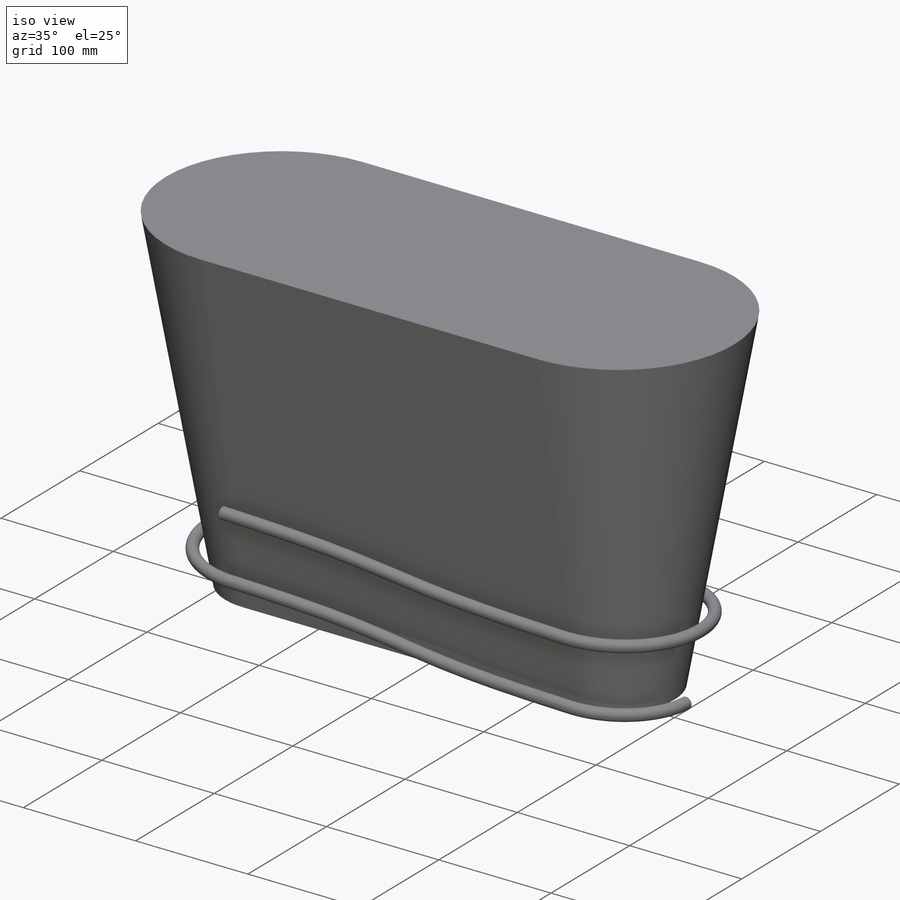
[diagram: iso view]
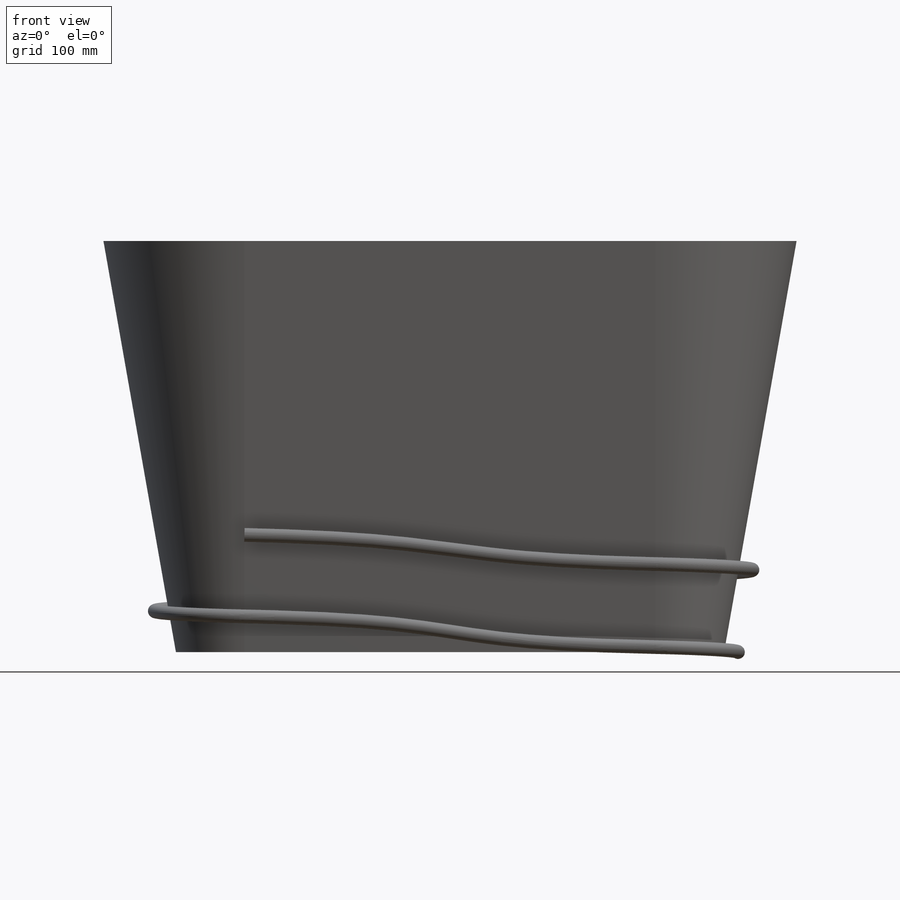
[diagram: front view]
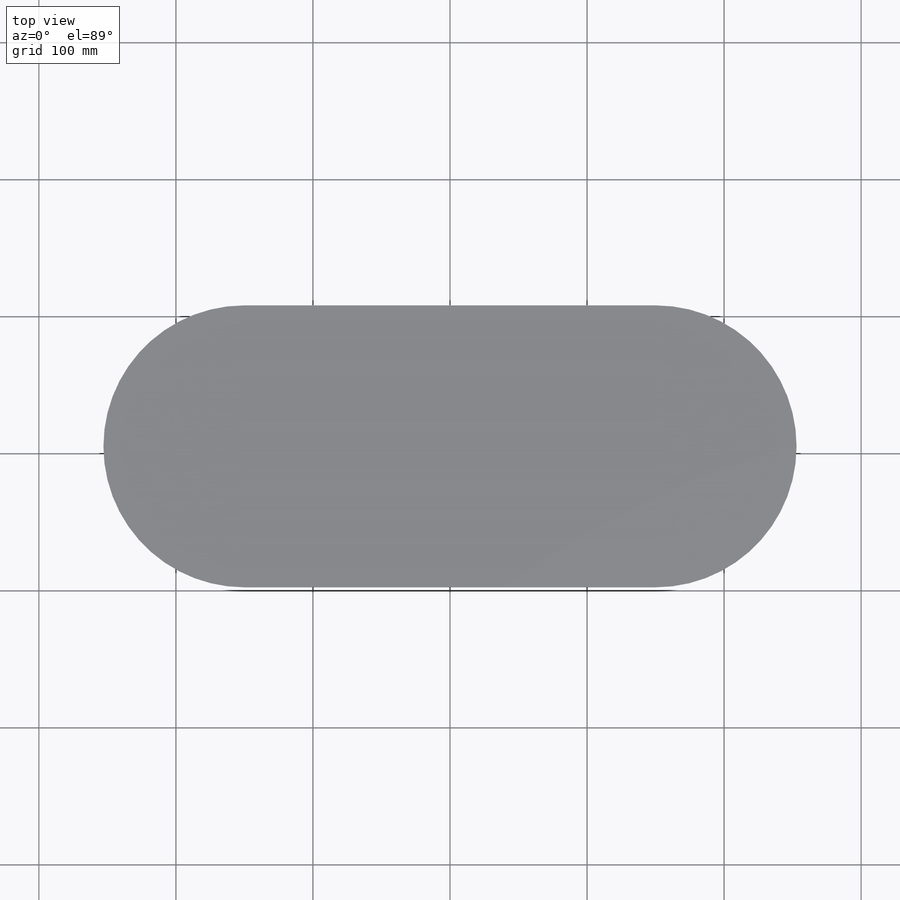
[diagram: top view]
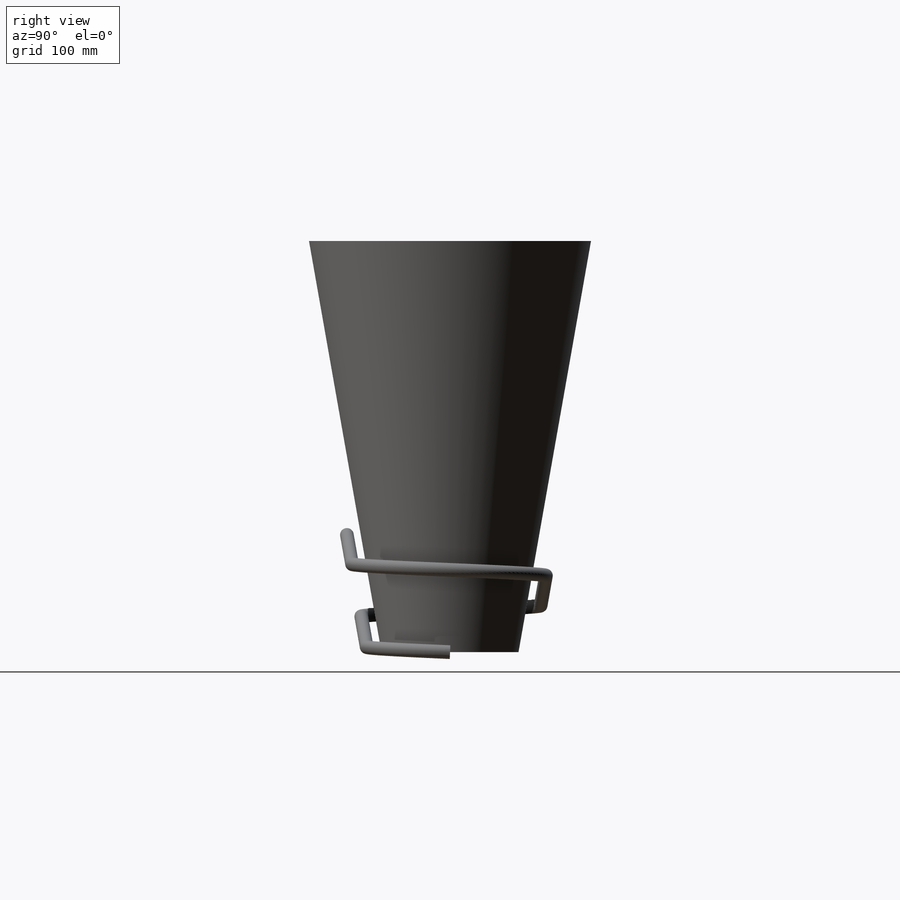
[diagram: right view]
SOLIDWORKS PART (.sldprt)
format: sldprt  version: not decoded by parser v0  size: 2,490,368 bytes
history: native  units: mm
features: sketch x5, plane x4, material x1, extrude x1, sweep x1 (+10 scaffold rows collapsed)
feature tree (22):
  scaffold x10  (default folders/planes/origin — collapsed)
  material  "Stahlblank"
  plane  "Vorne"
  plane  "Oben"
  plane  "Rechts"
  sketch  "Skizze1"  dims[D1=100.0mm D2=300.0mm]
  extrude  "Aufsatz-Linear austragen1"  Depth=300mm
  sketch  "Skizze2"  dims[D1=300.0mm]
  sketch  "Skizze3"  dims[c1.D1=300.0mm c2.D1=1800.0deg]
  sketch  "3D-Skizze2"
  plane  "Ebene1"
  sketch  "Skizze4"  dims[D1=10.0mm D2=8.0mm]
  sweep  "Austragung1"
decode coverage: 5 of 7 modeling features carry decoded parameters
note: suppression state not decoded; provenance and decode notes live in map.json
